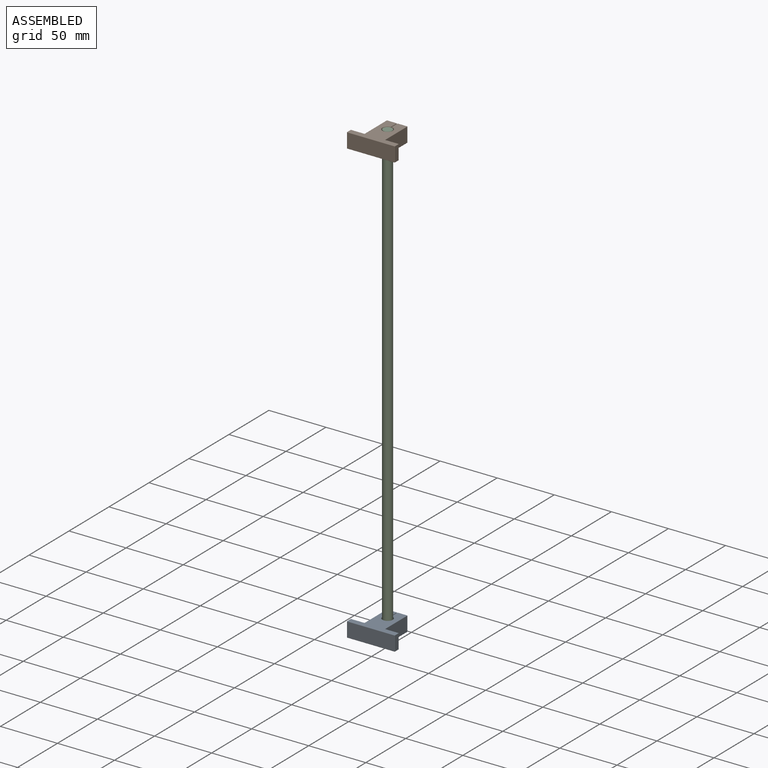
[diagram: assembled view]
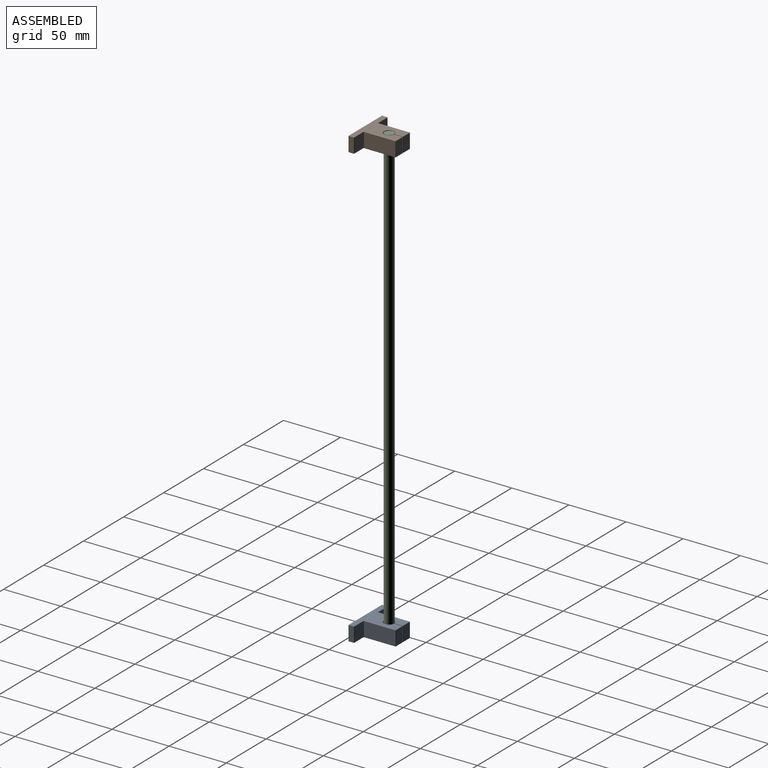
[diagram: assembled view, second angle]
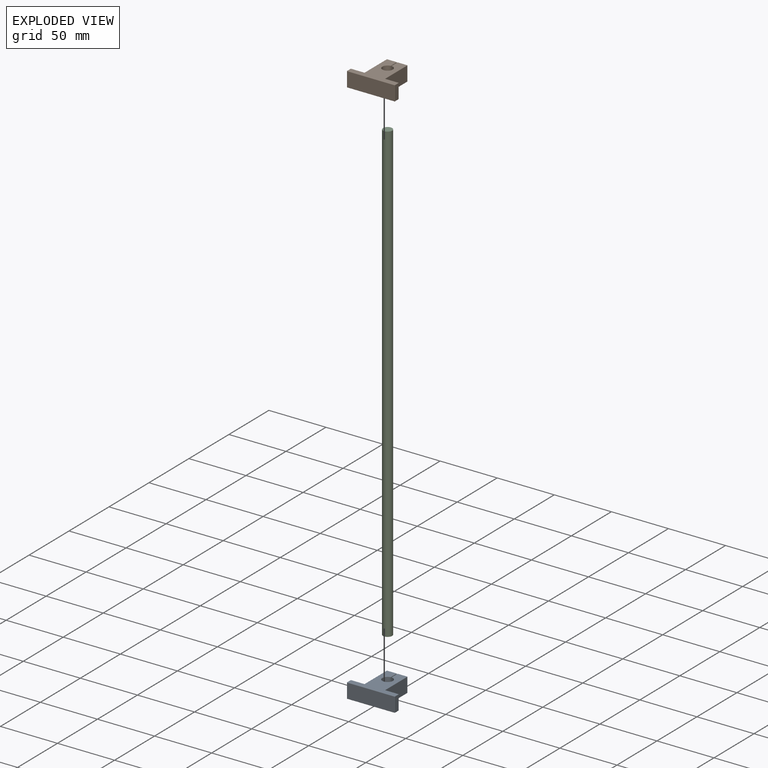
[diagram: exploded view]
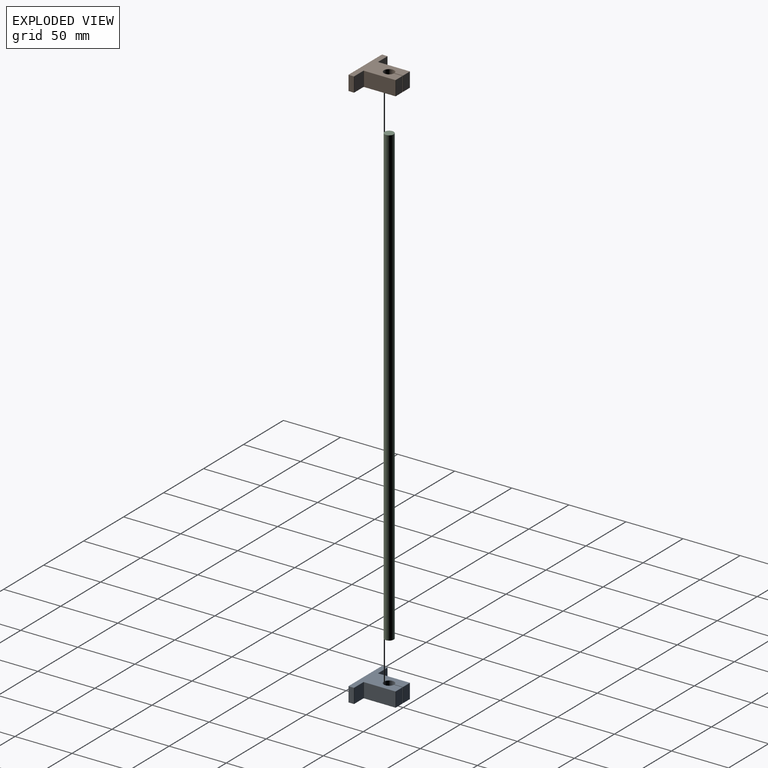
[diagram: exploded view, second angle]
ASSEMBLY  parts=3 mates=2
PART A: 68 faces, bbox 13x42x33 mm
  f0: plane 41.6x32.6mm, normal (1,0,0), area 607.7mm2, adj f21,f26,f27,f31,f36,f41,f46,f51
  f1: plane 12.6x8.3mm, normal (0,0,1), area 104.6mm2, adj f53,f62,f63,f67
  f2: plane 41.6x32.6mm, normal (-1,0,0), area 607.7mm2, adj f15,f16,f18,f23,f24,f33,f34,f43
  f3: plane 12.6x11.6mm, normal (0,0,1), area 146.2mm2, adj f44,f45,f55,f56
  f4: plane 12.6x4.6mm, normal (0,-1,0), area 58mm2, adj f16,f17,f25,f26
  f5: plane 12.6x4.6mm, normal (0,1,0), area 58mm2, adj f34,f35,f45,f46
  f6: plane 12.6x11.6mm, normal (0,0,1), area 146.2mm2, adj f15,f17,f21,f22
  f7: plane 41.6x12.6mm, normal (0,0,-1), area 524.2mm2, adj f24,f25,f35,f36
  f8: plane 27.6x12.6mm, normal (0,-1,0), area 347.8mm2, adj f22,f23,f31,f32
  f9: plane 27.6x12.6mm, normal (0,1,0), area 347.8mm2, adj f54,f55,f63,f64
  f10: plane 12.6x8.3mm, normal (0,0,1), area 104.6mm2, adj f32,f33,f41,f42
  f11: cylinder r=4.5mm len=12.6mm, axis (1,0,0), area 348.7mm2, adj f12,f13,f48,f57
  f12: plane 12.6x7.31mm, normal (0,-1,0), area 92.1mm2, adj f11,f52,f61,f62
  f13: plane 12.6x7.31mm, normal (0,1,0), area 92.1mm2, adj f11,f42,f43,f51
  f14: sphere r=0.2mm, area 0.1mm2, adj f15,f16,f17
  f15: cylinder r=0.2mm len=11.6mm, axis (0,1,0), area 3.6mm2, adj f2,f6,f14,f18
  f16: cylinder r=0.2mm len=4.6mm, axis (0,0,-1), area 1.4mm2, adj f2,f4,f14,f19
  f17: cylinder r=0.2mm len=12.6mm, axis (-1,0,0), area 4mm2, adj f4,f6,f14,f20
  f18: torus R=0.4mm, axis (-1,0,0), area 0.1mm2, adj f2,f15,f22,f23
  f19: sphere r=0.2mm, area 0.1mm2, adj f16,f24,f25
  f20: sphere r=0.2mm, area 0.1mm2, adj f17,f21,f26
  f21: cylinder r=0.2mm len=11.6mm, axis (0,-1,0), area 3.6mm2, adj f0,f6,f20,f27
  f22: cylinder r=0.2mm len=12.6mm, axis (1,0,0), area 4mm2, adj f6,f8,f18,f27
  f23: cylinder r=0.2mm len=27.6mm, axis (0,0,1), area 8.7mm2, adj f2,f8,f18,f28
  f24: cylinder r=0.2mm len=41.6mm, axis (0,-1,0), area 13.1mm2, adj f2,f7,f19,f29
  f25: cylinder r=0.2mm len=12.6mm, axis (1,0,0), area 4mm2, adj f4,f7,f19,f30
  f26: cylinder r=0.2mm len=4.6mm, axis (0,0,1), area 1.4mm2, adj f0,f4,f20,f30
  f27: torus R=0.4mm, axis (-1,0,0), area 0.1mm2, adj f0,f21,f22,f31
  f28: sphere r=0.2mm, area 0.1mm2, adj f23,f32,f33
  f29: sphere r=0.2mm, area 0.1mm2, adj f24,f34,f35
  f30: sphere r=0.2mm, area 0.1mm2, adj f25,f26,f36
  f31: cylinder r=0.2mm len=27.6mm, axis (0,0,-1), area 8.7mm2, adj f0,f8,f27,f37
  f32: cylinder r=0.2mm len=12.6mm, axis (-1,0,0), area 4mm2, adj f8,f10,f28,f37
  f33: cylinder r=0.2mm len=8.3mm, axis (0,1,0), area 2.6mm2, adj f2,f10,f28,f38
  f34: cylinder r=0.2mm len=4.6mm, axis (0,0,1), area 1.4mm2, adj f2,f5,f29,f39
  f35: cylinder r=0.2mm len=12.6mm, axis (-1,0,0), area 4mm2, adj f5,f7,f29,f40
  f36: cylinder r=0.2mm len=41.6mm, axis (0,1,0), area 13.1mm2, adj f0,f7,f30,f40
  f37: sphere r=0.2mm, area 0.1mm2, adj f31,f32,f41
  f38: sphere r=0.2mm, area 0.1mm2, adj f33,f42,f43
  f39: sphere r=0.2mm, area 0.1mm2, adj f34,f44,f45
  f40: sphere r=0.2mm, area 0.1mm2, adj f35,f36,f46
  f41: cylinder r=0.2mm len=8.3mm, axis (0,-1,0), area 2.6mm2, adj f0,f10,f37,f47
  f42: cylinder r=0.2mm len=12.6mm, axis (-1,0,0), area 4mm2, adj f10,f13,f38,f47
  f43: cylinder r=0.2mm len=7.31mm, axis (0,0,-1), area 2.3mm2, adj f2,f13,f38,f48
  f44: cylinder r=0.2mm len=11.6mm, axis (0,1,0), area 3.6mm2, adj f2,f3,f39,f49
  f45: cylinder r=0.2mm len=12.6mm, axis (1,0,0), area 4mm2, adj f3,f5,f39,f50
  f46: cylinder r=0.2mm len=4.6mm, axis (0,0,-1), area 1.4mm2, adj f0,f5,f40,f50
  f47: sphere r=0.2mm, area 0.1mm2, adj f41,f42,f51
  f48: torus R=4.7mm, axis (-1,0,0), area 8.8mm2, adj f2,f11,f43,f52
  f49: torus R=0.4mm, axis (-1,0,0), area 0.1mm2, adj f2,f44,f54,f55
  f50: sphere r=0.2mm, area 0.1mm2, adj f45,f46,f56
  f51: cylinder r=0.2mm len=7.31mm, axis (0,0,-1), area 2.3mm2, adj f0,f13,f47,f57
  f52: cylinder r=0.2mm len=7.31mm, axis (0,0,1), area 2.3mm2, adj f2,f12,f48,f58
  f53: cylinder r=0.2mm len=8.3mm, axis (0,1,0), area 2.6mm2, adj f1,f2,f58,f59
  f54: cylinder r=0.2mm len=27.6mm, axis (0,0,1), area 8.7mm2, adj f2,f9,f49,f59
  f55: cylinder r=0.2mm len=12.6mm, axis (-1,0,0), area 4mm2, adj f3,f9,f49,f60
  f56: cylinder r=0.2mm len=11.6mm, axis (0,-1,0), area 3.6mm2, adj f0,f3,f50,f60
  f57: torus R=4.7mm, axis (-1,0,0), area 8.8mm2, adj f0,f11,f51,f61
  f58: sphere r=0.2mm, area 0.1mm2, adj f52,f53,f62
  f59: sphere r=0.2mm, area 0.1mm2, adj f53,f54,f63
  f60: torus R=0.4mm, axis (-1,0,0), area 0.1mm2, adj f0,f55,f56,f64
  f61: cylinder r=0.2mm len=7.31mm, axis (0,0,1), area 2.3mm2, adj f0,f12,f57,f65
  f62: cylinder r=0.2mm len=12.6mm, axis (1,0,0), area 4mm2, adj f1,f12,f58,f65
  f63: cylinder r=0.2mm len=12.6mm, axis (1,0,0), area 4mm2, adj f1,f9,f59,f66
  f64: cylinder r=0.2mm len=27.6mm, axis (0,0,-1), area 8.7mm2, adj f0,f9,f60,f66
  f65: sphere r=0.2mm, area 0.1mm2, adj f61,f62,f67
  f66: sphere r=0.2mm, area 0.1mm2, adj f63,f64,f67
  f67: cylinder r=0.2mm len=8.3mm, axis (0,-1,0), area 2.6mm2, adj f0,f1,f65,f66
PART B: same geometry as A
PART C: 3 faces, bbox 8x8x400 mm
  f0: cylinder r=4mm len=400mm, axis (0,0,-1), area 10053.1mm2, adj f1,f2
  f1: plane 8x8mm, normal (0,0,1), area 50.3mm2, adj f0
  f2: plane 8x8mm, normal (0,0,-1), area 50.3mm2, adj f0
PLACE A rot(axis=(-0.58,-0.58,-0.58),120deg) t=(-94.82,20.34,-49.38)mm
PLACE B rot(axis=(-0.58,0.58,0.58),120deg) t=(-94.82,20.34,337.82)mm
PLACE C t=(-94.82,41.34,-55.88)mm
MATE fastened B.f11 <-> C.f0  axis (0,0,-1) through (-94.82,41.34,344.12)mm
MATE fastened A.f11 <-> C.f0  axis (0,0,-1) through (-94.82,41.34,-55.88)mm
